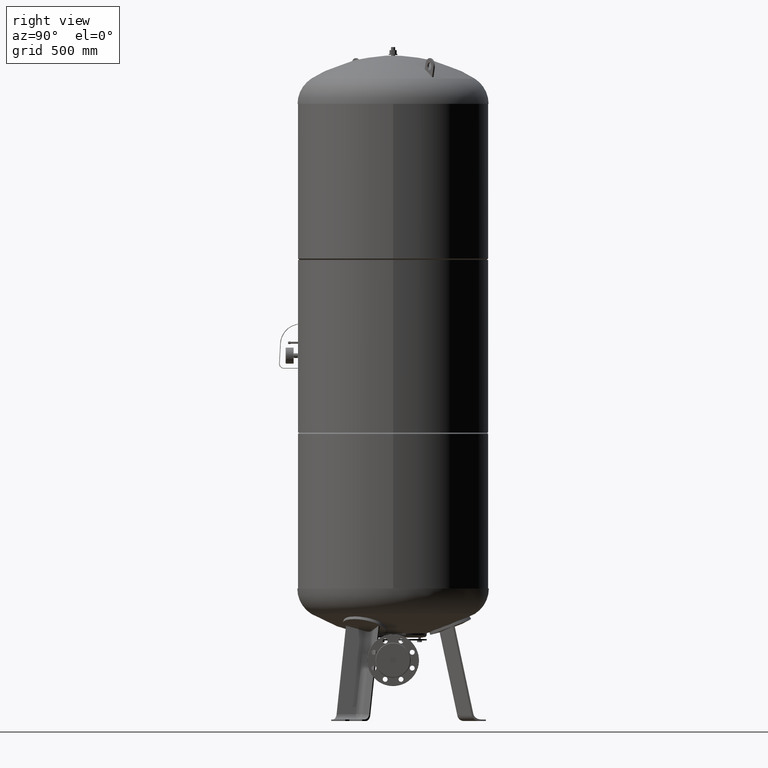
[diagram: clean part render]
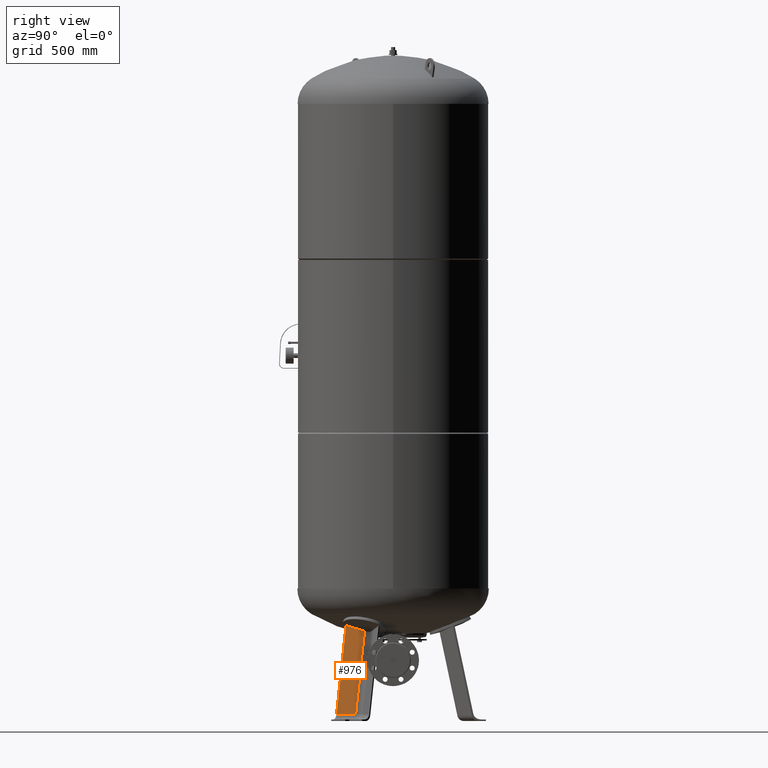
[diagram: same view with one face highlighted and labeled with its STEP entity id]
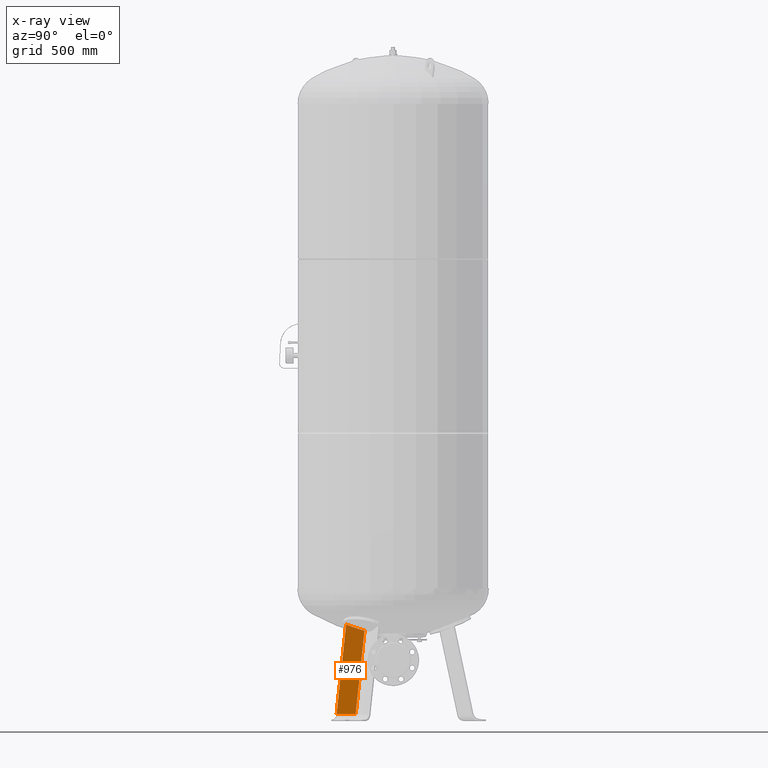
[diagram: x-ray of the same camera — body ghosted, the highlighted face saturated]
A machine part, right view. The second image highlights one B-rep face of the part: STEP entity #976.
The next image is the same camera in x-ray: the body ghosted, the highlighted face saturated — about 0% of this face is hidden behind the body in this view.
In plain terms, the highlighted planar face has unit normal (0.9697, 0.1854, 0.1588).
Its self-contained STEP definition (entity closure, byte-faithful):
#171=CARTESIAN_POINT('',(218.072409248121460,-144.536932639186090,27.029948423057292));
#172=VERTEX_POINT('',#171);
#244=CARTESIAN_POINT('',(158.828443235501170,-110.332412913938700,348.869175182353330));
#245=VERTEX_POINT('',#244);
#326=CARTESIAN_POINT('',(168.540131715960230,-181.412613696192120,372.562952014676110));
#327=VERTEX_POINT('',#326);
#335=CARTESIAN_POINT('',(158.828443235501170,-110.332412913938700,348.869175182353330));
#336=CARTESIAN_POINT('',(159.140308945746030,-112.481491377469270,349.474179354457020));
#337=CARTESIAN_POINT('',(159.450541506074640,-114.632281824841000,350.091155577606000));
#338=CARTESIAN_POINT('',(160.800721286569030,-124.047105973480900,352.839681936076030));
#339=CARTESIAN_POINT('',(161.824675071974980,-131.328084243318270,355.088683497572050));
#340=CARTESIAN_POINT('',(164.800008526659500,-152.866619821244400,362.069703598062690));
#341=CARTESIAN_POINT('',(166.704599258965460,-167.154454540863870,367.122797962066270));
#342=CARTESIAN_POINT('',(168.540131715960230,-181.412613696192120,372.562952014676110));
#343=B_SPLINE_CURVE_WITH_KNOTS('',3,(#335,#336,#337,#338,#339,#340,#341,#342),.UNSPECIFIED.,.F.,.U.,(4,2,2,4),(5.937335443723129,6.588195328792665,8.784260438390220,13.073486937020286),.UNSPECIFIED.);
#344=EDGE_CURVE('',#245,#327,#343,.T.);
#628=CARTESIAN_POINT('',(232.145633528610920,-218.135267289667330,27.029948423057292));
#629=VERTEX_POINT('',#628);
#630=CARTESIAN_POINT('',(218.072409248121460,-144.536932639186090,27.029948423057292));
#631=DIRECTION('',(0.187813845079449,-0.982204642422582,0.0));
#632=VECTOR('',#631,74.931772333057651);
#633=LINE('',#630,#632);
#634=EDGE_CURVE('',#172,#629,#633,.T.);
#949=CARTESIAN_POINT('',(158.828443235501170,-110.332412913938700,348.869175182353330));
#950=DIRECTION('',(0.180056805991956,-0.103955845408880,-0.978147600733805));
#951=VECTOR('',#950,329.029306535999810);
#952=LINE('',#949,#951);
#953=EDGE_CURVE('',#245,#172,#952,.T.);
#960=CARTESIAN_POINT('',(231.511688463168240,-133.663335654755060,-67.735293817669458));
#961=DIRECTION('',(0.969740897595359,0.185430570007243,0.158802063077708));
#962=DIRECTION('',(-0.180056805991956,0.103955845408880,0.978147600733806));
#963=AXIS2_PLACEMENT_3D('',#960,#961,#962);
#964=PLANE('',#963);
#965=ORIENTED_EDGE('',*,*,#953,.F.);
#966=ORIENTED_EDGE('',*,*,#344,.T.);
#967=CARTESIAN_POINT('',(232.145633528610920,-218.135267289667330,27.029948423057292));
#968=DIRECTION('',(-0.180056805991956,0.103955845408880,0.978147600733805));
#969=VECTOR('',#968,353.252416437355920);
#970=LINE('',#967,#969);
#971=EDGE_CURVE('',#629,#327,#970,.T.);
#972=ORIENTED_EDGE('',*,*,#971,.F.);
#973=ORIENTED_EDGE('',*,*,#634,.F.);
#974=EDGE_LOOP('',(#965,#966,#972,#973));
#975=FACE_OUTER_BOUND('',#974,.T.);
#976=ADVANCED_FACE('',(#975),#964,.T.);